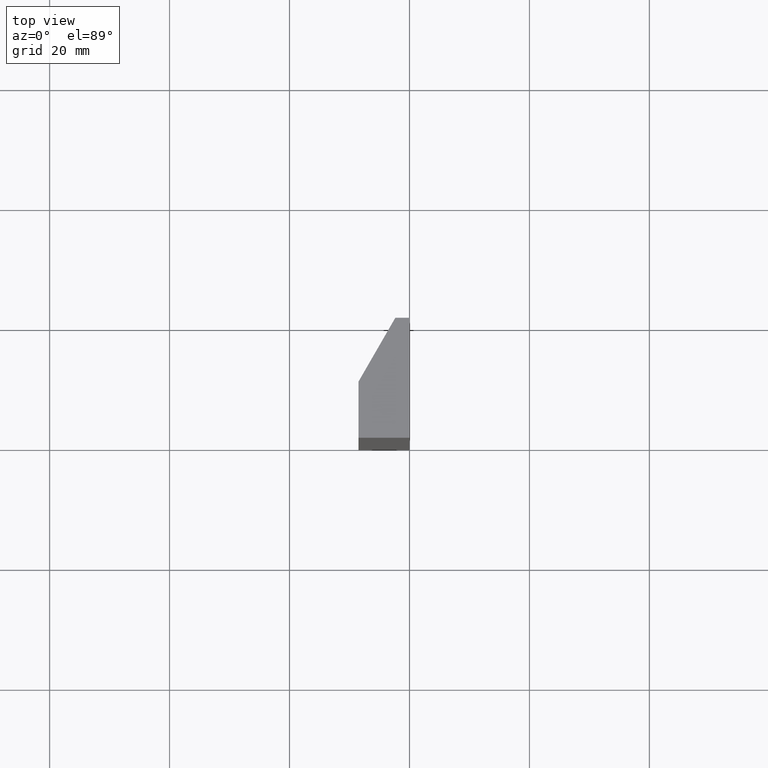
[diagram: clean part render]
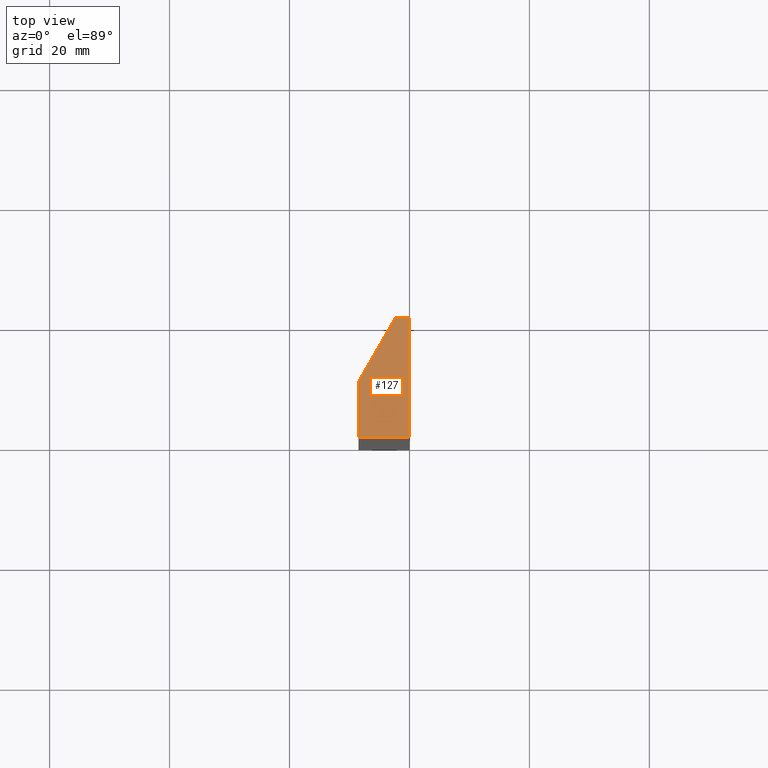
[diagram: same view with one face highlighted and labeled with its STEP entity id]
A machine part, top view. The second image highlights one B-rep face of the part: STEP entity #127.
In plain terms, the highlighted planar face has unit normal (0, 0, 1).
Its self-contained STEP definition (entity closure, byte-faithful):
#21=FACE_OUTER_BOUND('',#28,.T.);
#28=EDGE_LOOP('',(#109,#110,#111,#112,#113));
#35=LINE('',#205,#50);
#37=LINE('',#209,#52);
#39=LINE('',#213,#54);
#41=LINE('',#217,#56);
#43=LINE('',#220,#58);
#50=VECTOR('',#170,10.);
#52=VECTOR('',#174,10.);
#54=VECTOR('',#178,10.);
#56=VECTOR('',#182,10.);
#58=VECTOR('',#186,10.);
#64=VERTEX_POINT('',#202);
#65=VERTEX_POINT('',#204);
#66=VERTEX_POINT('',#208);
#67=VERTEX_POINT('',#212);
#68=VERTEX_POINT('',#216);
#75=EDGE_CURVE('',#65,#64,#35,.T.);
#77=EDGE_CURVE('',#66,#65,#37,.T.);
#79=EDGE_CURVE('',#67,#66,#39,.T.);
#81=EDGE_CURVE('',#68,#67,#41,.T.);
#83=EDGE_CURVE('',#64,#68,#43,.T.);
#109=ORIENTED_EDGE('',*,*,#83,.T.);
#110=ORIENTED_EDGE('',*,*,#81,.T.);
#111=ORIENTED_EDGE('',*,*,#79,.T.);
#112=ORIENTED_EDGE('',*,*,#77,.T.);
#113=ORIENTED_EDGE('',*,*,#75,.T.);
#120=PLANE('',#157);
#127=ADVANCED_FACE('',(#21),#120,.T.);
#157=AXIS2_PLACEMENT_3D('',#221,#187,#188);
#170=DIRECTION('',(1.,1.95921710227969E-16,0.));
#174=DIRECTION('',(0.,-1.,0.));
#178=DIRECTION('',(-0.5,-0.866025403784439,0.));
#182=DIRECTION('',(-1.,0.,0.));
#186=DIRECTION('',(-1.11022302462516E-16,1.,0.));
#187=DIRECTION('center_axis',(0.,0.,1.));
#188=DIRECTION('ref_axis',(1.,0.,0.));
#202=CARTESIAN_POINT('',(0.,0.,60.));
#204=CARTESIAN_POINT('',(-8.5,-1.66533453693773E-15,60.));
#205=CARTESIAN_POINT('',(-8.5,-1.66533453693773E-15,60.));
#208=CARTESIAN_POINT('',(-8.5,9.36,60.));
#209=CARTESIAN_POINT('',(-8.5,9.36,60.));
#212=CARTESIAN_POINT('',(-2.35699313582239,20.,60.));
#213=CARTESIAN_POINT('',(-2.35699313582239,20.,60.));
#216=CARTESIAN_POINT('',(-2.22044604925031E-15,20.,60.));
#217=CARTESIAN_POINT('',(-2.22044604925031E-15,20.,60.));
#220=CARTESIAN_POINT('',(0.,0.,60.));
#221=CARTESIAN_POINT('Origin',(-4.25,10.,60.));